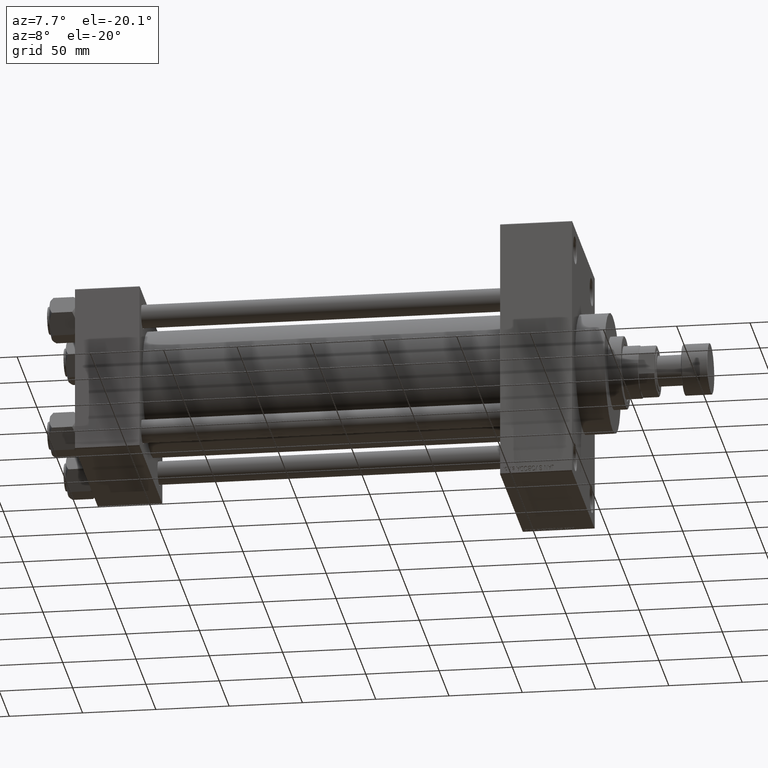
[diagram: clean part render]
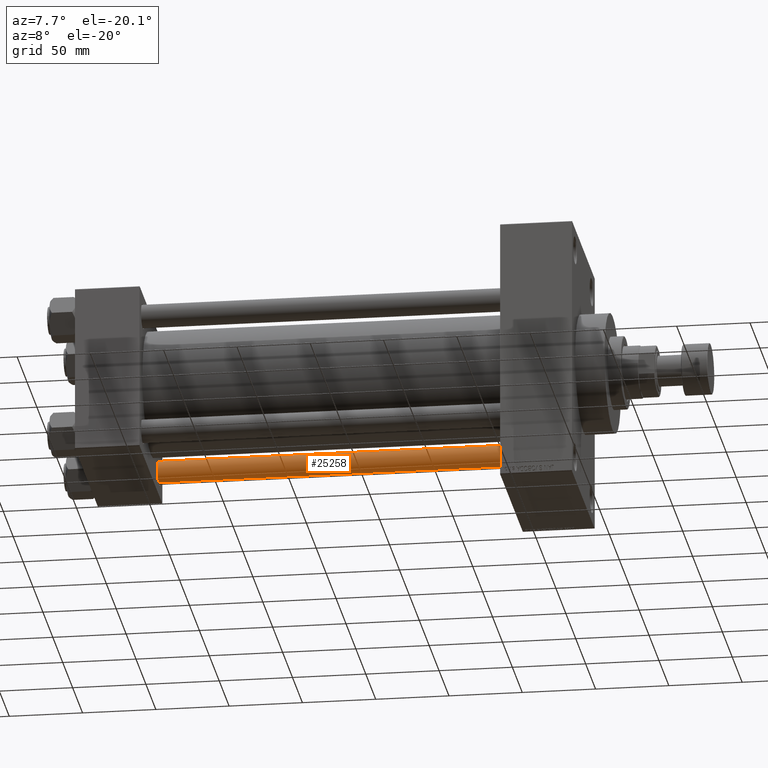
[diagram: same view with one face highlighted and labeled with its STEP entity id]
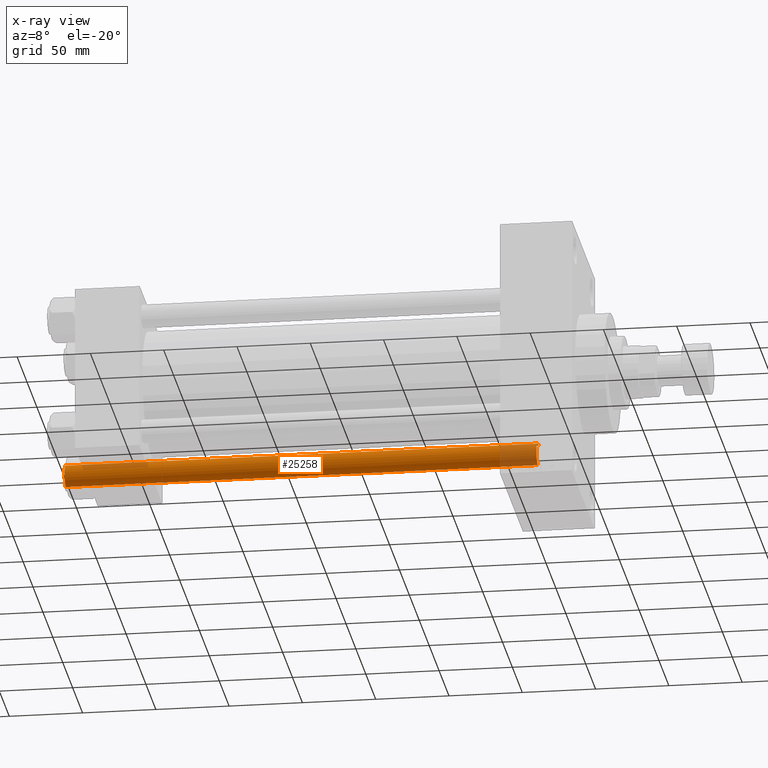
[diagram: x-ray of the same camera — body ghosted, the highlighted face saturated]
A machine part, auxiliary view. The second image highlights one B-rep face of the part: STEP entity #25258.
The next image is the same camera in x-ray: the body ghosted, the highlighted face saturated — about 11% of this face is hidden behind the body in this view.
In plain terms, the highlighted cylindrical surface (edge-blend (fillet) strip) has radius 8 mm, axis along (1, -0, 0).
Its self-contained STEP definition (entity closure, byte-faithful):
#464 = LINE ( 'NONE', #19672, #5325 ) ;
#1719 = VECTOR ( 'NONE', #35213, 1000.000000000000000 ) ;
#2022 = DIRECTION ( 'NONE',  ( 1.000000000000000000, 0.000000000000000000, 0.000000000000000000 ) ) ;
#3233 = EDGE_CURVE ( 'NONE', #17213, #13381, #40202, .T. ) ;
#5054 = CARTESIAN_POINT ( 'NONE',  ( -8.000000000000000000, 0.000000000000000000, 323.0000000000000000 ) ) ;
#5325 = VECTOR ( 'NONE', #37691, 1000.000000000000000 ) ;
#5392 = ORIENTED_EDGE ( 'NONE', *, *, #14869, .T. ) ;
#5628 = ORIENTED_EDGE ( 'NONE', *, *, #3233, .T. ) ;
#6902 = DIRECTION ( 'NONE',  ( 0.000000000000000000, 0.000000000000000000, -1.000000000000000000 ) ) ;
#9835 = CARTESIAN_POINT ( 'NONE',  ( 0.000000000000000000, 0.000000000000000000, 322.5000000000000000 ) ) ;
#11064 = AXIS2_PLACEMENT_3D ( 'NONE', #27833, #24664, #2022 ) ;
#12348 = LINE ( 'NONE', #5054, #1719 ) ;
#13381 = VERTEX_POINT ( 'NONE', #30963 ) ;
#14869 = EDGE_CURVE ( 'NONE', #13381, #37020, #12348, .T. ) ;
#15856 = ORIENTED_EDGE ( 'NONE', *, *, #29766, .T. ) ;
#17213 = VERTEX_POINT ( 'NONE', #46508 ) ;
#17728 = DIRECTION ( 'NONE',  ( -0.000000000000000000, -0.000000000000000000, -1.000000000000000000 ) ) ;
#18803 = DIRECTION ( 'NONE',  ( 1.000000000000000000, 0.000000000000000000, 0.000000000000000000 ) ) ;
#19672 = CARTESIAN_POINT ( 'NONE',  ( 8.000000000000000000, 9.797174393178825657E-16, 323.0000000000000000 ) ) ;
#21207 = EDGE_CURVE ( 'NONE', #17213, #38188, #464, .T. ) ;
#22111 = DIRECTION ( 'NONE',  ( -1.000000000000000000, 0.000000000000000000, 0.000000000000000000 ) ) ;
#24664 = DIRECTION ( 'NONE',  ( -0.000000000000000000, -0.000000000000000000, 1.000000000000000000 ) ) ;
#24674 = AXIS2_PLACEMENT_3D ( 'NONE', #9835, #6902, #18803 ) ;
#25258 = ADVANCED_FACE ( 'NONE', ( #35496 ), #39902, .T. ) ;
#26764 = CARTESIAN_POINT ( 'NONE',  ( 8.000000000000000000, 9.797174393178825657E-16, 0.5000000000000004441 ) ) ;
#27833 = CARTESIAN_POINT ( 'NONE',  ( 0.000000000000000000, 0.000000000000000000, 0.5000000000000004441 ) ) ;
#28159 = CIRCLE ( 'NONE', #11064, 8.000000000000000000 ) ;
#28699 = CARTESIAN_POINT ( 'NONE',  ( 0.000000000000000000, 0.000000000000000000, 323.0000000000000000 ) ) ;
#29766 = EDGE_CURVE ( 'NONE', #37020, #38188, #28159, .T. ) ;
#30963 = CARTESIAN_POINT ( 'NONE',  ( -8.000000000000000000, 0.000000000000000000, 322.5000000000000000 ) ) ;
#35213 = DIRECTION ( 'NONE',  ( -0.000000000000000000, -0.000000000000000000, -1.000000000000000000 ) ) ;
#35496 = FACE_OUTER_BOUND ( 'NONE', #44131, .T. ) ;
#36544 = AXIS2_PLACEMENT_3D ( 'NONE', #28699, #17728, #22111 ) ;
#37020 = VERTEX_POINT ( 'NONE', #40174 ) ;
#37691 = DIRECTION ( 'NONE',  ( -0.000000000000000000, -0.000000000000000000, -1.000000000000000000 ) ) ;
#38188 = VERTEX_POINT ( 'NONE', #26764 ) ;
#39902 = CYLINDRICAL_SURFACE ( 'NONE', #36544, 8.000000000000000000 ) ;
#40174 = CARTESIAN_POINT ( 'NONE',  ( -8.000000000000000000, 0.000000000000000000, 0.5000000000000004441 ) ) ;
#40202 = CIRCLE ( 'NONE', #24674, 8.000000000000000000 ) ;
#44131 = EDGE_LOOP ( 'NONE', ( #44896, #5628, #5392, #15856 ) ) ;
#44896 = ORIENTED_EDGE ( 'NONE', *, *, #21207, .F. ) ;
#46508 = CARTESIAN_POINT ( 'NONE',  ( 8.000000000000000000, 9.797174393178825657E-16, 322.5000000000000000 ) ) ;